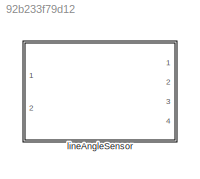
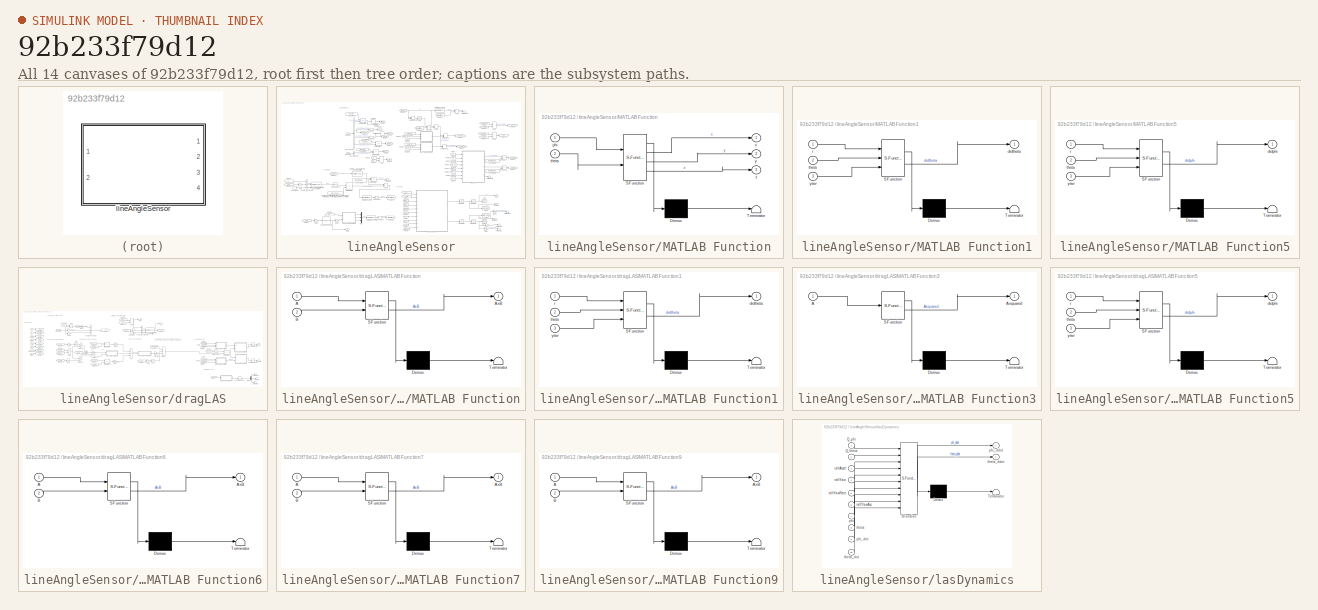
[diagram: thumbnail index - all 14 canvases of the model, root first then tree order]
MODEL slx_92b233f79d12
KIND library
CONFIG AbsTol = auto
CONFIG EnableMultiTasking = off
CONFIG FixedStep = auto
CONFIG MaxStep = auto
CONFIG MinStep = auto
CONFIG RelTol = 1e-3
CONFIG SampleTimeConstraint = Unconstrained
CONFIG Solver = VariableStepAuto
CONFIG SolverName = VariableStepAuto
CONFIG StartTime = 0.0
CONFIG StopTime = 10.0
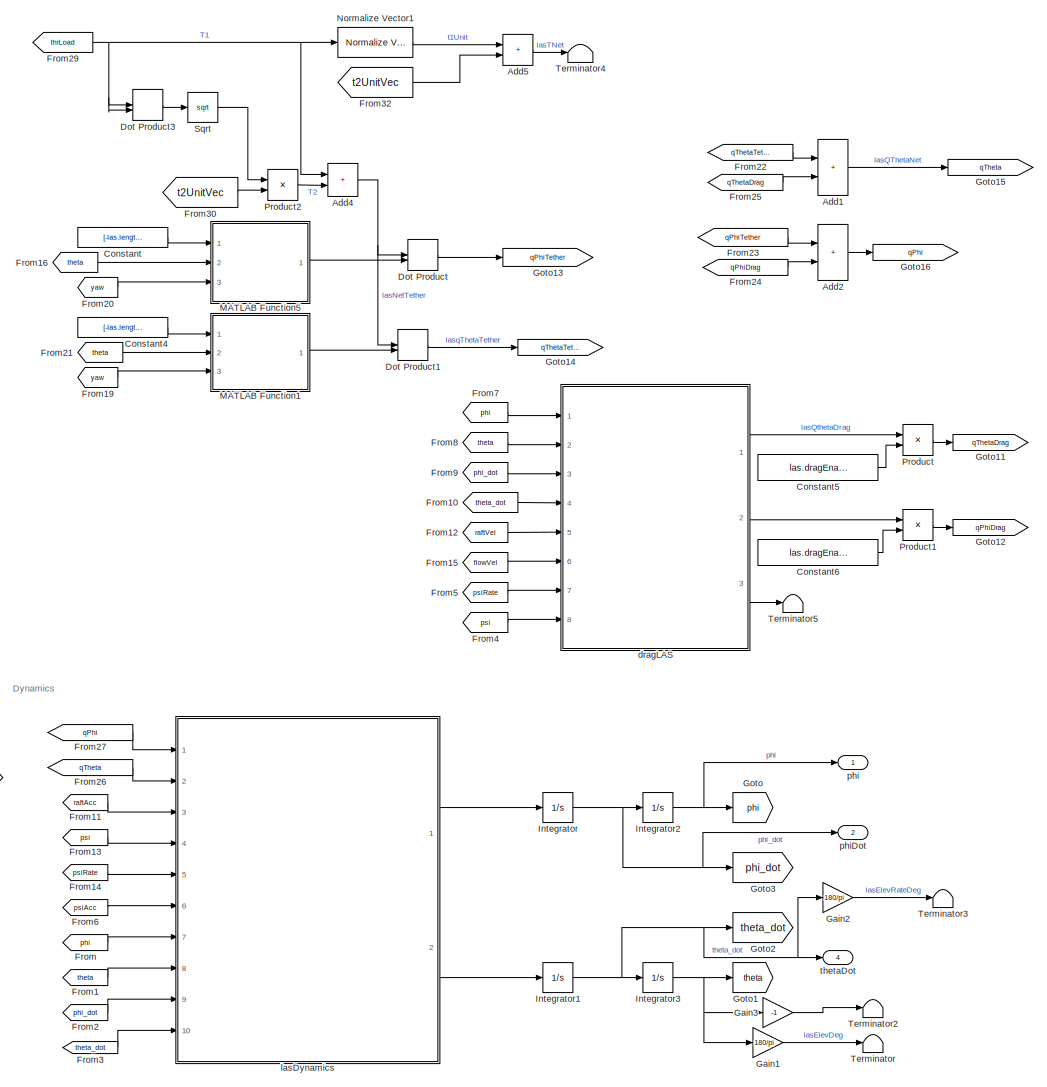
[diagram: lineAngleSensor - part 1/2, right side, full height]
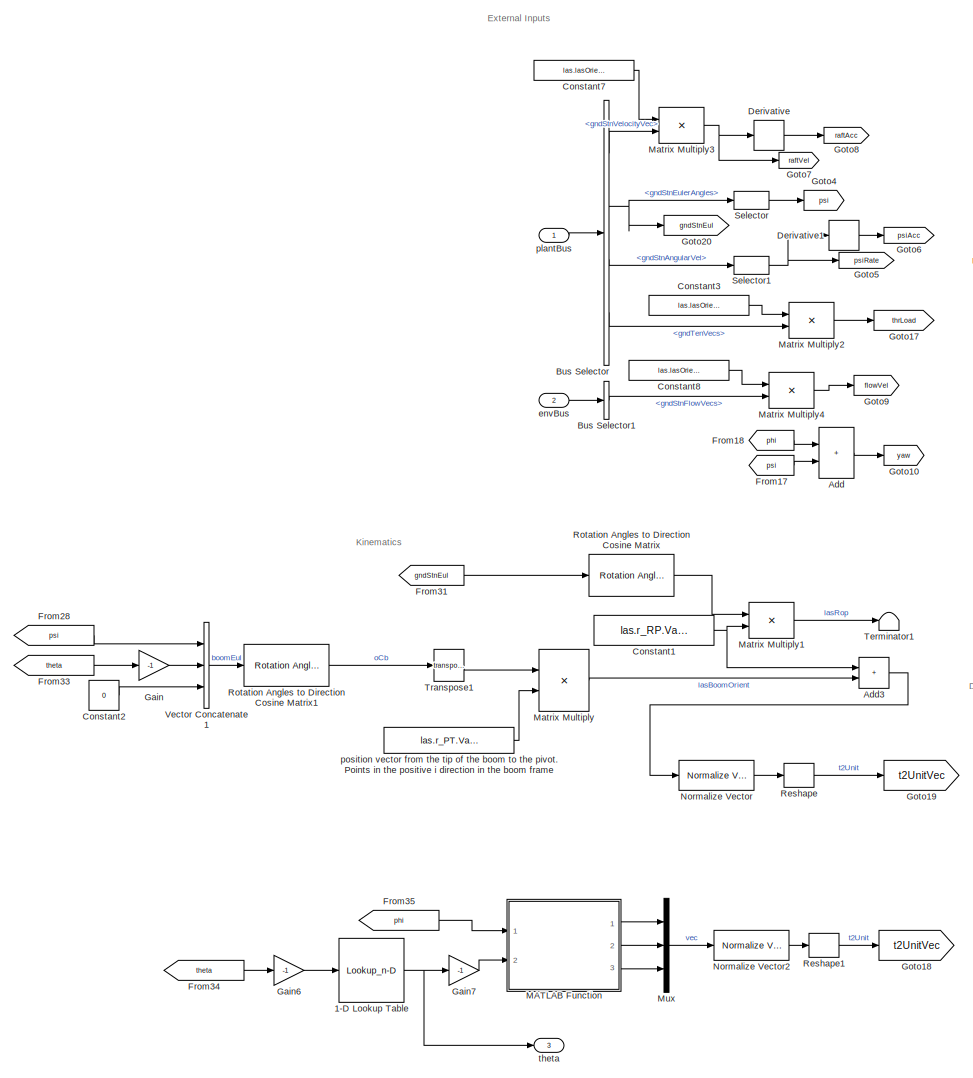
[diagram: lineAngleSensor - part 2/2, left side, full height]
BLOCK [SubSystem] lineAngleSensor
  Ports = [2, 4]
  RequestExecContextInheritance = off
BLOCK [Lookup_n-D] lineAngleSensor/1-D Lookup Table
  BreakpointsForDimension1 = las.thrAngLookup.Value(2,:)
  InternalRulePriority = Speed
  NumberOfTableDimensions = 1
  Ports = [1, 1]
  RndMeth = Simplest
  Table = las.thrAngLookup.Value(1,:)
BLOCK [Sum] lineAngleSensor/Add
  IconShape = rectangular
  Ports = [2, 1]
BLOCK [Sum] lineAngleSensor/Add1
  IconShape = rectangular
  Ports = [2, 1]
BLOCK [Sum] lineAngleSensor/Add2
  IconShape = rectangular
  Ports = [2, 1]
BLOCK [Sum] lineAngleSensor/Add3
  Commented = on
  IconShape = rectangular
  Ports = [2, 1]
BLOCK [Sum] lineAngleSensor/Add4
  IconShape = rectangular
  Ports = [2, 1]
BLOCK [Sum] lineAngleSensor/Add5
  IconShape = rectangular
  Ports = [2, 1]
BLOCK [BusSelector] lineAngleSensor/Bus Selector
  OutputSignals = gndStnVelocityVec,gndStnEulerAngles,gndStnAngularVel,gndTenVecs
  Ports = [1, 4]
BLOCK [BusSelector] lineAngleSensor/Bus Selector1
  OutputSignals = gndStnFlowVecs
  Ports = [1, 1]
BLOCK [Constant] lineAngleSensor/Constant
  Value = [-las.length.Value 0 0]
BLOCK [Constant] lineAngleSensor/Constant1
  Commented = on
  Value = las.r_RP.Value
BLOCK [Constant] lineAngleSensor/Constant2
  Commented = on
  Value = 0
BLOCK [Constant] lineAngleSensor/Constant3
  Value = las.lasOrient.Value
BLOCK [Constant] lineAngleSensor/Constant4
  Value = [-las.length.Value 0 0]
BLOCK [Constant] lineAngleSensor/Constant5
  Value = las.dragEnable.Value
BLOCK [Constant] lineAngleSensor/Constant6
  Value = las.dragEnable.Value
BLOCK [Constant] lineAngleSensor/Constant7
  Value = las.lasOrient.Value
BLOCK [Constant] lineAngleSensor/Constant8
  Value = las.lasOrient.Value
BLOCK [Derivative] lineAngleSensor/Derivative
BLOCK [Derivative] lineAngleSensor/Derivative1
BLOCK [DotProduct] lineAngleSensor/Dot Product
  OutDataTypeStr = Inherit: Inherit via internal rule
BLOCK [DotProduct] lineAngleSensor/Dot Product1
  OutDataTypeStr = Inherit: Inherit via internal rule
BLOCK [DotProduct] lineAngleSensor/Dot Product3
  OutDataTypeStr = Inherit: Inherit via internal rule
BLOCK [From] lineAngleSensor/From
  GotoTag = phi
BLOCK [From] lineAngleSensor/From1
  GotoTag = theta
BLOCK [From] lineAngleSensor/From10
  GotoTag = theta_dot
BLOCK [From] lineAngleSensor/From11
  GotoTag = raftAcc
BLOCK [From] lineAngleSensor/From12
  GotoTag = raftVel
BLOCK [From] lineAngleSensor/From13
  GotoTag = psi
BLOCK [From] lineAngleSensor/From14
  GotoTag = psiRate
BLOCK [From] lineAngleSensor/From15
  GotoTag = flowVel
BLOCK [From] lineAngleSensor/From16
  GotoTag = theta
BLOCK [From] lineAngleSensor/From17
  GotoTag = psi
BLOCK [From] lineAngleSensor/From18
  GotoTag = phi
BLOCK [From] lineAngleSensor/From19
  GotoTag = yaw
BLOCK [From] lineAngleSensor/From2
  GotoTag = phi_dot
BLOCK [From] lineAngleSensor/From20
  GotoTag = yaw
BLOCK [From] lineAngleSensor/From21
  GotoTag = theta
BLOCK [From] lineAngleSensor/From22
  GotoTag = qThetaTether
BLOCK [From] lineAngleSensor/From23
  GotoTag = qPhiTether
BLOCK [From] lineAngleSensor/From24
  GotoTag = qPhiDrag
BLOCK [From] lineAngleSensor/From25
  GotoTag = qThetaDrag
BLOCK [From] lineAngleSensor/From26
  GotoTag = qTheta
BLOCK [From] lineAngleSensor/From27
  GotoTag = qPhi
BLOCK [From] lineAngleSensor/From28
  Commented = on
  GotoTag = psi
BLOCK [From] lineAngleSensor/From29
  GotoTag = thrLoad
BLOCK [From] lineAngleSensor/From3
  GotoTag = theta_dot
BLOCK [From] lineAngleSensor/From30
  GotoTag = t2UnitVec
BLOCK [From] lineAngleSensor/From31
  Commented = on
  GotoTag = gndStnEul
BLOCK [From] lineAngleSensor/From32
  GotoTag = t2UnitVec
BLOCK [From] lineAngleSensor/From33
  Commented = on
  GotoTag = theta
BLOCK [From] lineAngleSensor/From34
  GotoTag = theta
BLOCK [From] lineAngleSensor/From35
  GotoTag = phi
BLOCK [From] lineAngleSensor/From4
  GotoTag = psi
BLOCK [From] lineAngleSensor/From5
  GotoTag = psiRate
BLOCK [From] lineAngleSensor/From6
  GotoTag = psiAcc
BLOCK [From] lineAngleSensor/From7
  GotoTag = phi
BLOCK [From] lineAngleSensor/From8
  GotoTag = theta
BLOCK [From] lineAngleSensor/From9
  GotoTag = phi_dot
BLOCK [Gain] lineAngleSensor/Gain
  Commented = on
  Gain = -1
BLOCK [Gain] lineAngleSensor/Gain1
  Gain = 180/pi
BLOCK [Gain] lineAngleSensor/Gain2
  Gain = 180/pi
BLOCK [Gain] lineAngleSensor/Gain3
  Gain = -1
BLOCK [Gain] lineAngleSensor/Gain6
  Gain = -1
  NameLocation = top
BLOCK [Gain] lineAngleSensor/Gain7
  Gain = -1
BLOCK [Goto] lineAngleSensor/Goto
  GotoTag = phi
BLOCK [Goto] lineAngleSensor/Goto1
  GotoTag = theta
BLOCK [Goto] lineAngleSensor/Goto10
  GotoTag = yaw
BLOCK [Goto] lineAngleSensor/Goto11
  GotoTag = qThetaDrag
BLOCK [Goto] lineAngleSensor/Goto12
  GotoTag = qPhiDrag
BLOCK [Goto] lineAngleSensor/Goto13
  GotoTag = qPhiTether
BLOCK [Goto] lineAngleSensor/Goto14
  GotoTag = qThetaTether
BLOCK [Goto] lineAngleSensor/Goto15
  GotoTag = qTheta
BLOCK [Goto] lineAngleSensor/Goto16
  GotoTag = qPhi
BLOCK [Goto] lineAngleSensor/Goto17
  GotoTag = thrLoad
BLOCK [Goto] lineAngleSensor/Goto18
  GotoTag = t2UnitVec
BLOCK [Goto] lineAngleSensor/Goto19
  Commented = on
  GotoTag = t2UnitVec
BLOCK [Goto] lineAngleSensor/Goto2
  GotoTag = theta_dot
BLOCK [Goto] lineAngleSensor/Goto20
  Commented = on
  GotoTag = gndStnEul
BLOCK [Goto] lineAngleSensor/Goto3
  GotoTag = phi_dot
BLOCK [Goto] lineAngleSensor/Goto4
  GotoTag = psi
BLOCK [Goto] lineAngleSensor/Goto5
  GotoTag = psiRate
BLOCK [Goto] lineAngleSensor/Goto6
  GotoTag = psiAcc
BLOCK [Goto] lineAngleSensor/Goto7
  GotoTag = raftVel
BLOCK [Goto] lineAngleSensor/Goto8
  GotoTag = raftAcc
BLOCK [Goto] lineAngleSensor/Goto9
  GotoTag = flowVel
BLOCK [Integrator] lineAngleSensor/Integrator
  InitialCondition = las.initAngVel.Value(2)
  Ports = [1, 1]
BLOCK [Integrator] lineAngleSensor/Integrator1
  InitialCondition = las.initAngVel.Value(1)
  Ports = [1, 1]
BLOCK [Integrator] lineAngleSensor/Integrator2
  InitialCondition = las.initAng.Value(2)
  Ports = [1, 1]
BLOCK [Integrator] lineAngleSensor/Integrator3
  InitialCondition = las.initAng.Value(1)
  Ports = [1, 1]
BLOCK [SubSystem] lineAngleSensor/MATLAB Function
  ErrorFcn = Stateflow.Translate.translate
  PermitHierarchicalResolution = ExplicitOnly
  Ports = [2, 3]
  RequestExecContextInheritance = off
  SFBlockType = MATLAB Function
  TreatAsAtomicUnit = on
BLOCK [Demux] lineAngleSensor/MATLAB Function/ Demux 
  Outputs = 1
  Ports = [1, 1]
BLOCK [S-Function] lineAngleSensor/MATLAB Function/ SFunction 
  EnableBusSupport = off
  FunctionName = sf_sfun
  PortCounts = [2 4]
  Ports = [2, 4]
  SFcnIsStateOwnerBlock = off
  SFunctionDeploymentMode = off
  Tag = Stateflow S-Function 2
BLOCK [Terminator] lineAngleSensor/MATLAB Function/ Terminator 
BLOCK [Inport] lineAngleSensor/MATLAB Function/phi
BLOCK [Inport] lineAngleSensor/MATLAB Function/theta
  Port = 2
BLOCK [Outport] lineAngleSensor/MATLAB Function/x
BLOCK [Outport] lineAngleSensor/MATLAB Function/y
  Port = 2
BLOCK [Outport] lineAngleSensor/MATLAB Function/z
  Port = 3
BLOCK [SubSystem] lineAngleSensor/MATLAB Function1
  ErrorFcn = Stateflow.Translate.translate
  PermitHierarchicalResolution = ExplicitOnly
  Ports = [3, 1]
  RequestExecContextInheritance = off
  SFBlockType = MATLAB Function
  TreatAsAtomicUnit = on
BLOCK [Demux] lineAngleSensor/MATLAB Function1/ Demux 
  Outputs = 1
  Ports = [1, 1]
BLOCK [S-Function] lineAngleSensor/MATLAB Function1/ SFunction 
  EnableBusSupport = off
  FunctionName = sf_sfun
  PortCounts = [3 2]
  Ports = [3, 2]
  SFcnIsStateOwnerBlock = off
  SFunctionDeploymentMode = off
  Tag = Stateflow S-Function 12
BLOCK [Terminator] lineAngleSensor/MATLAB Function1/ Terminator 
BLOCK [Outport] lineAngleSensor/MATLAB Function1/drdtheta
BLOCK [Inport] lineAngleSensor/MATLAB Function1/r
BLOCK [Inport] lineAngleSensor/MATLAB Function1/theta
  Port = 2
BLOCK [Inport] lineAngleSensor/MATLAB Function1/yaw
  Port = 3
BLOCK [SubSystem] lineAngleSensor/MATLAB Function5
  ErrorFcn = Stateflow.Translate.translate
  PermitHierarchicalResolution = ExplicitOnly
  Ports = [3, 1]
  RequestExecContextInheritance = off
  SFBlockType = MATLAB Function
  TreatAsAtomicUnit = on
BLOCK [Demux] lineAngleSensor/MATLAB Function5/ Demux 
  Outputs = 1
  Ports = [1, 1]
BLOCK [S-Function] lineAngleSensor/MATLAB Function5/ SFunction 
  EnableBusSupport = off
  FunctionName = sf_sfun
  PortCounts = [3 2]
  Ports = [3, 2]
  SFcnIsStateOwnerBlock = off
  SFunctionDeploymentMode = off
  Tag = Stateflow S-Function 11
BLOCK [Terminator] lineAngleSensor/MATLAB Function5/ Terminator 
BLOCK [Outport] lineAngleSensor/MATLAB Function5/drdphi
BLOCK [Inport] lineAngleSensor/MATLAB Function5/r
BLOCK [Inport] lineAngleSensor/MATLAB Function5/theta
  Port = 2
BLOCK [Inport] lineAngleSensor/MATLAB Function5/yaw
  Port = 3
BLOCK [Product] lineAngleSensor/Matrix Multiply
  Commented = on
  Multiplication = Matrix(*)
  Ports = [2, 1]
BLOCK [Product] lineAngleSensor/Matrix Multiply1
  Commented = on
  Multiplication = Matrix(*)
  Ports = [2, 1]
BLOCK [Product] lineAngleSensor/Matrix Multiply2
  Multiplication = Matrix(*)
  Ports = [2, 1]
BLOCK [Product] lineAngleSensor/Matrix Multiply3
  Multiplication = Matrix(*)
  Ports = [2, 1]
BLOCK [Product] lineAngleSensor/Matrix Multiply4
  Multiplication = Matrix(*)
  Ports = [2, 1]
BLOCK [Mux] lineAngleSensor/Mux
  DisplayOption = bar
  Inputs = 3
  Ports = [3, 1]
BLOCK [Reference] lineAngleSensor/Normalize Vector  REF=vrlib/Utilities/Normalize Vector
  Commented = on
  Ports = [1, 1]
  SourceBlock = vrlib/Utilities/Normalize Vector
  SourceProductBaseCode = SL
  SourceType = Normalize Vector
BLOCK [Reference] lineAngleSensor/Normalize Vector1  REF=vrlib/Utilities/Normalize Vector
  Ports = [1, 1]
  SourceBlock = vrlib/Utilities/Normalize Vector
  SourceProductBaseCode = SL
  SourceType = Normalize Vector
BLOCK [Reference] lineAngleSensor/Normalize Vector2  REF=vrlib/Utilities/Normalize Vector
  Ports = [1, 1]
  SourceBlock = vrlib/Utilities/Normalize Vector
  SourceProductBaseCode = SL
  SourceType = Normalize Vector
BLOCK [Product] lineAngleSensor/Product
  Ports = [2, 1]
BLOCK [Product] lineAngleSensor/Product1
  Ports = [2, 1]
BLOCK [Product] lineAngleSensor/Product2
  Ports = [2, 1]
BLOCK [Reshape] lineAngleSensor/Reshape
  Commented = on
  OutputDimensionality = Column vector (2-D)
  Ports = [1, 1]
BLOCK [Reshape] lineAngleSensor/Reshape1
  OutputDimensionality = Column vector (2-D)
  Ports = [1, 1]
BLOCK [Reference] lineAngleSensor/Rotation Angles to Direction Cosine Matrix  REF=sharedtransform/Rotation Angles to
Direction Cosine Matrix
  AttributesFormatString = Rotation Order: %<rotationOrder>
  Commented = on
  Ports = [1, 1]
  SourceBlock = sharedtransform/Rotation Angles to\nDirection Cosine Matrix
  SourceProductBaseCode = AE,PW,MT,VE,VP
  SourceType = Ang2DCM
BLOCK [Reference] lineAngleSensor/Rotation Angles to Direction Cosine Matrix1  REF=sharedtransform/Rotation Angles to
Direction Cosine Matrix
  AttributesFormatString = Rotation Order: %<rotationOrder>
  Commented = on
  Ports = [1, 1]
  SourceBlock = sharedtransform/Rotation Angles to\nDirection Cosine Matrix
  SourceProductBaseCode = AE,PW,MT,VE,VP
  SourceType = Ang2DCM
BLOCK [Selector] lineAngleSensor/Selector
  IndexOptions = Index vector (dialog)
  Indices = [3]
  InputPortWidth = 3
  OutputSizes = 1
  Ports = [1, 1]
BLOCK [Selector] lineAngleSensor/Selector1
  IndexOptions = Index vector (dialog)
  Indices = [3]
  InputPortWidth = 3
  OutputSizes = 1
  Ports = [1, 1]
BLOCK [Sqrt] lineAngleSensor/Sqrt
BLOCK [Terminator] lineAngleSensor/Terminator
BLOCK [Terminator] lineAngleSensor/Terminator1
  Commented = on
BLOCK [Terminator] lineAngleSensor/Terminator2
BLOCK [Terminator] lineAngleSensor/Terminator3
BLOCK [Terminator] lineAngleSensor/Terminator4
BLOCK [Terminator] lineAngleSensor/Terminator5
BLOCK [Math] lineAngleSensor/Transpose1
  Commented = on
  Operator = transpose
  Ports = [1, 1]
BLOCK [Concatenate] lineAngleSensor/Vector Concatenate1
  Commented = on
  NumInputs = 3
  Ports = [3, 1]
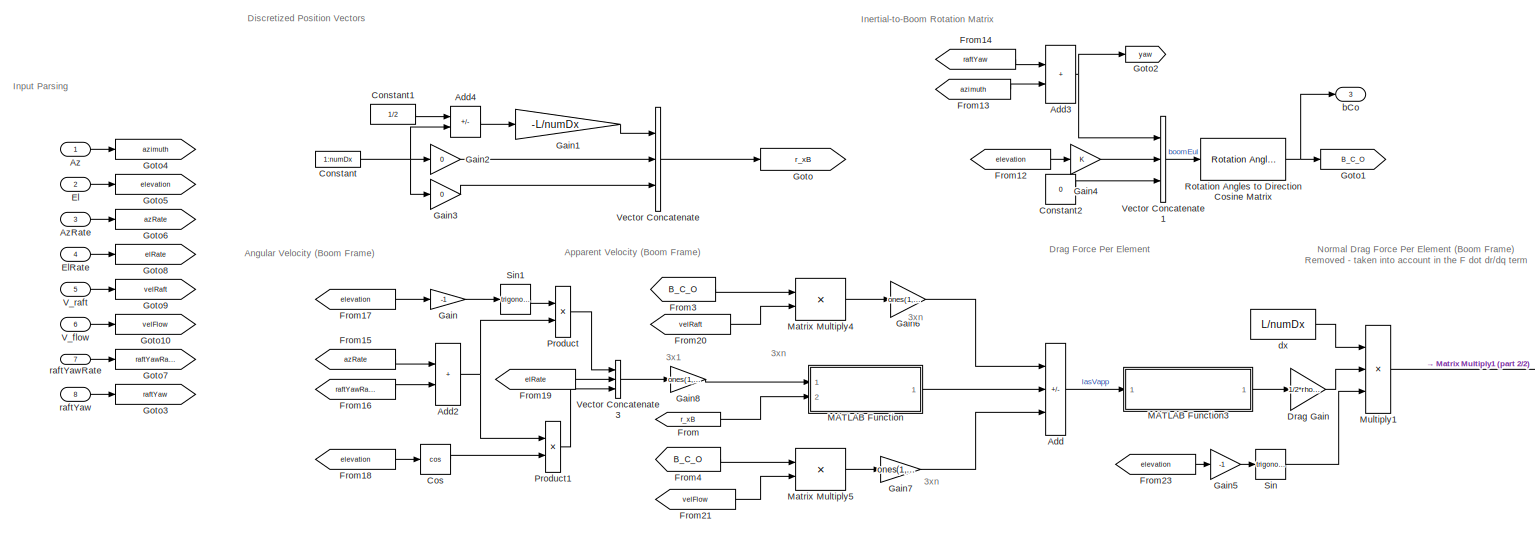
[diagram: lineAngleSensor/dragLAS - part 1/2, middle left region]
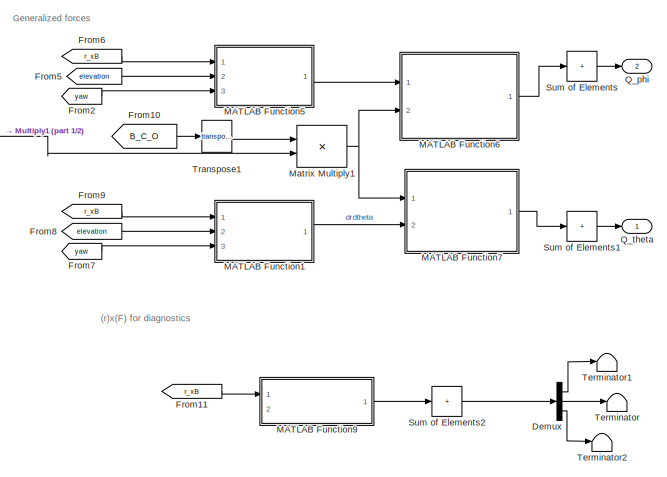
[diagram: lineAngleSensor/dragLAS - part 2/2, middle right region]
BLOCK [SubSystem] lineAngleSensor/dragLAS
  Ports = [8, 3]
  RequestExecContextInheritance = off
BLOCK [Sum] lineAngleSensor/dragLAS/Add
  IconShape = rectangular
  Inputs = --+
  Ports = [3, 1]
BLOCK [Sum] lineAngleSensor/dragLAS/Add2
  IconShape = rectangular
  Ports = [2, 1]
BLOCK [Sum] lineAngleSensor/dragLAS/Add3
  IconShape = rectangular
  Ports = [2, 1]
BLOCK [Sum] lineAngleSensor/dragLAS/Add4
  IconShape = rectangular
  Inputs = -+
  Ports = [2, 1]
BLOCK [Inport] lineAngleSensor/dragLAS/Az
BLOCK [Inport] lineAngleSensor/dragLAS/AzRate
  Port = 3
BLOCK [Constant] lineAngleSensor/dragLAS/Constant
  Value = 1:numDx
  VectorParams1D = off
BLOCK [Constant] lineAngleSensor/dragLAS/Constant1
  Value = 1/2
BLOCK [Constant] lineAngleSensor/dragLAS/Constant2
  Value = 0
BLOCK [Trigonometry] lineAngleSensor/dragLAS/Cos
  Operator = cos
  Ports = [1, 1]
BLOCK [Demux] lineAngleSensor/dragLAS/Demux
  Commented = on
  Outputs = 3
  Ports = [1, 3]
BLOCK [Gain] lineAngleSensor/dragLAS/Drag Gain
  Gain = 1/2*rho*C_D*w
BLOCK [Inport] lineAngleSensor/dragLAS/El
  Port = 2
BLOCK [Inport] lineAngleSensor/dragLAS/ElRate
  Port = 4
BLOCK [From] lineAngleSensor/dragLAS/From
  GotoTag = r_xB
BLOCK [From] lineAngleSensor/dragLAS/From10
  GotoTag = B_C_O
BLOCK [From] lineAngleSensor/dragLAS/From11
  Commented = on
  GotoTag = r_xB
BLOCK [From] lineAngleSensor/dragLAS/From12
  GotoTag = elevation
BLOCK [From] lineAngleSensor/dragLAS/From13
  GotoTag = azimuth
BLOCK [From] lineAngleSensor/dragLAS/From14
  GotoTag = raftYaw
BLOCK [From] lineAngleSensor/dragLAS/From15
  GotoTag = azRate
BLOCK [From] lineAngleSensor/dragLAS/From16
  GotoTag = raftYawRate
BLOCK [From] lineAngleSensor/dragLAS/From17
  GotoTag = elevation
BLOCK [From] lineAngleSensor/dragLAS/From18
  GotoTag = elevation
BLOCK [From] lineAngleSensor/dragLAS/From19
  GotoTag = elRate
BLOCK [From] lineAngleSensor/dragLAS/From2
  GotoTag = yaw
BLOCK [From] lineAngleSensor/dragLAS/From20
  GotoTag = velRaft
BLOCK [From] lineAngleSensor/dragLAS/From21
  GotoTag = velFlow
BLOCK [From] lineAngleSensor/dragLAS/From23
  GotoTag = elevation
BLOCK [From] lineAngleSensor/dragLAS/From3
  GotoTag = B_C_O
BLOCK [From] lineAngleSensor/dragLAS/From4
  GotoTag = B_C_O
BLOCK [From] lineAngleSensor/dragLAS/From5
  GotoTag = elevation
BLOCK [From] lineAngleSensor/dragLAS/From6
  GotoTag = r_xB
BLOCK [From] lineAngleSensor/dragLAS/From7
  GotoTag = yaw
BLOCK [From] lineAngleSensor/dragLAS/From8
  GotoTag = elevation
BLOCK [From] lineAngleSensor/dragLAS/From9
  GotoTag = r_xB
BLOCK [Gain] lineAngleSensor/dragLAS/Gain
  Gain = -1
BLOCK [Gain] lineAngleSensor/dragLAS/Gain1
  Gain = -L/numDx
BLOCK [Gain] lineAngleSensor/dragLAS/Gain2
  Gain = 0
BLOCK [Gain] lineAngleSensor/dragLAS/Gain3
  Gain = 0
BLOCK [Gain] lineAngleSensor/dragLAS/Gain4
BLOCK [Gain] lineAngleSensor/dragLAS/Gain5
  Gain = -1
BLOCK [Gain] lineAngleSensor/dragLAS/Gain6
  Gain = ones(1,numDx)
  Multiplication = Matrix(u*K)
BLOCK [Gain] lineAngleSensor/dragLAS/Gain7
  Gain = ones(1,numDx)
  Multiplication = Matrix(u*K)
BLOCK [Gain] lineAngleSensor/dragLAS/Gain8
  Gain = ones(1,numDx)
  Multiplication = Matrix(u*K)
BLOCK [Goto] lineAngleSensor/dragLAS/Goto
  GotoTag = r_xB
BLOCK [Goto] lineAngleSensor/dragLAS/Goto1
  GotoTag = B_C_O
BLOCK [Goto] lineAngleSensor/dragLAS/Goto10
  GotoTag = velFlow
BLOCK [Goto] lineAngleSensor/dragLAS/Goto2
  GotoTag = yaw
BLOCK [Goto] lineAngleSensor/dragLAS/Goto3
  GotoTag = raftYaw
BLOCK [Goto] lineAngleSensor/dragLAS/Goto4
  GotoTag = azimuth
BLOCK [Goto] lineAngleSensor/dragLAS/Goto5
  GotoTag = elevation
BLOCK [Goto] lineAngleSensor/dragLAS/Goto6
  GotoTag = azRate
BLOCK [Goto] lineAngleSensor/dragLAS/Goto7
  GotoTag = raftYawRate
BLOCK [Goto] lineAngleSensor/dragLAS/Goto8
  GotoTag = elRate
BLOCK [Goto] lineAngleSensor/dragLAS/Goto9
  GotoTag = velRaft
BLOCK [SubSystem] lineAngleSensor/dragLAS/MATLAB Function
  ErrorFcn = Stateflow.Translate.translate
  PermitHierarchicalResolution = ExplicitOnly
  Ports = [2, 1]
  RequestExecContextInheritance = off
  SFBlockType = MATLAB Function
  TreatAsAtomicUnit = on
BLOCK [Demux] lineAngleSensor/dragLAS/MATLAB Function/ Demux 
  Outputs = 1
  Ports = [1, 1]
BLOCK [S-Function] lineAngleSensor/dragLAS/MATLAB Function/ SFunction 
  EnableBusSupport = off
  FunctionName = sf_sfun
  PortCounts = [2 2]
  Ports = [2, 2]
  SFcnIsStateOwnerBlock = off
  SFunctionDeploymentMode = off
  Tag = Stateflow S-Function 7
BLOCK [Terminator] lineAngleSensor/dragLAS/MATLAB Function/ Terminator 
BLOCK [Inport] lineAngleSensor/dragLAS/MATLAB Function/A
BLOCK [Outport] lineAngleSensor/dragLAS/MATLAB Function/AxB
BLOCK [Inport] lineAngleSensor/dragLAS/MATLAB Function/B
  Port = 2
BLOCK [SubSystem] lineAngleSensor/dragLAS/MATLAB Function1
  ErrorFcn = Stateflow.Translate.translate
  PermitHierarchicalResolution = ExplicitOnly
  Ports = [3, 1]
  RequestExecContextInheritance = off
  SFBlockType = MATLAB Function
  TreatAsAtomicUnit = on
BLOCK [Demux] lineAngleSensor/dragLAS/MATLAB Function1/ Demux 
  Outputs = 1
  Ports = [1, 1]
BLOCK [S-Function] lineAngleSensor/dragLAS/MATLAB Function1/ SFunction 
  EnableBusSupport = off
  FunctionName = sf_sfun
  PortCounts = [3 2]
  Ports = [3, 2]
  SFcnIsStateOwnerBlock = off
  SFunctionDeploymentMode = off
  Tag = Stateflow S-Function 8
BLOCK [Terminator] lineAngleSensor/dragLAS/MATLAB Function1/ Terminator 
BLOCK [Outport] lineAngleSensor/dragLAS/MATLAB Function1/drdtheta
BLOCK [Inport] lineAngleSensor/dragLAS/MATLAB Function1/r
BLOCK [Inport] lineAngleSensor/dragLAS/MATLAB Function1/theta
  Port = 2
BLOCK [Inport] lineAngleSensor/dragLAS/MATLAB Function1/yaw
  Port = 3
BLOCK [SubSystem] lineAngleSensor/dragLAS/MATLAB Function3
  ErrorFcn = Stateflow.Translate.translate
  PermitHierarchicalResolution = ExplicitOnly
  Ports = [1, 1]
  RequestExecContextInheritance = off
  SFBlockType = MATLAB Function
  TreatAsAtomicUnit = on
BLOCK [Demux] lineAngleSensor/dragLAS/MATLAB Function3/ Demux 
  Outputs = 1
  Ports = [1, 1]
BLOCK [S-Function] lineAngleSensor/dragLAS/MATLAB Function3/ SFunction 
  EnableBusSupport = off
  FunctionName = sf_sfun
  PortCounts = [1 2]
  Ports = [1, 2]
  SFcnIsStateOwnerBlock = off
  SFunctionDeploymentMode = off
  Tag = Stateflow S-Function 10
BLOCK [Terminator] lineAngleSensor/dragLAS/MATLAB Function3/ Terminator 
BLOCK [Inport] lineAngleSensor/dragLAS/MATLAB Function3/A
BLOCK [Outport] lineAngleSensor/dragLAS/MATLAB Function3/Asquared
BLOCK [SubSystem] lineAngleSensor/dragLAS/MATLAB Function5
  ErrorFcn = Stateflow.Translate.translate
  PermitHierarchicalResolution = ExplicitOnly
  Ports = [3, 1]
  RequestExecContextInheritance = off
  SFBlockType = MATLAB Function
  TreatAsAtomicUnit = on
BLOCK [Demux] lineAngleSensor/dragLAS/MATLAB Function5/ Demux 
  Outputs = 1
  Ports = [1, 1]
BLOCK [S-Function] lineAngleSensor/dragLAS/MATLAB Function5/ SFunction 
  EnableBusSupport = off
  FunctionName = sf_sfun
  PortCounts = [3 2]
  Ports = [3, 2]
  SFcnIsStateOwnerBlock = off
  SFunctionDeploymentMode = off
  Tag = Stateflow S-Function 14
BLOCK [Terminator] lineAngleSensor/dragLAS/MATLAB Function5/ Terminator 
BLOCK [Outport] lineAngleSensor/dragLAS/MATLAB Function5/drdphi
BLOCK [Inport] lineAngleSensor/dragLAS/MATLAB Function5/r
BLOCK [Inport] lineAngleSensor/dragLAS/MATLAB Function5/theta
  Port = 2
BLOCK [Inport] lineAngleSensor/dragLAS/MATLAB Function5/yaw
  Port = 3
BLOCK [SubSystem] lineAngleSensor/dragLAS/MATLAB Function6
  ErrorFcn = Stateflow.Translate.translate
  PermitHierarchicalResolution = ExplicitOnly
  Ports = [2, 1]
  RequestExecContextInheritance = off
  SFBlockType = MATLAB Function
  TreatAsAtomicUnit = on
BLOCK [Demux] lineAngleSensor/dragLAS/MATLAB Function6/ Demux 
  Outputs = 1
  Ports = [1, 1]
BLOCK [S-Function] lineAngleSensor/dragLAS/MATLAB Function6/ SFunction 
  EnableBusSupport = off
  FunctionName = sf_sfun
  PortCounts = [2 2]
  Ports = [2, 2]
  SFcnIsStateOwnerBlock = off
  SFunctionDeploymentMode = off
  Tag = Stateflow S-Function 15
BLOCK [Terminator] lineAngleSensor/dragLAS/MATLAB Function6/ Terminator 
BLOCK [Inport] lineAngleSensor/dragLAS/MATLAB Function6/A
BLOCK [Outport] lineAngleSensor/dragLAS/MATLAB Function6/AxB
BLOCK [Inport] lineAngleSensor/dragLAS/MATLAB Function6/B
  Port = 2
BLOCK [SubSystem] lineAngleSensor/dragLAS/MATLAB Function7
  ErrorFcn = Stateflow.Translate.translate
  PermitHierarchicalResolution = ExplicitOnly
  Ports = [2, 1]
  RequestExecContextInheritance = off
  SFBlockType = MATLAB Function
  TreatAsAtomicUnit = on
BLOCK [Demux] lineAngleSensor/dragLAS/MATLAB Function7/ Demux 
  Outputs = 1
  Ports = [1, 1]
BLOCK [S-Function] lineAngleSensor/dragLAS/MATLAB Function7/ SFunction 
  EnableBusSupport = off
  FunctionName = sf_sfun
  PortCounts = [2 2]
  Ports = [2, 2]
  SFcnIsStateOwnerBlock = off
  SFunctionDeploymentMode = off
  Tag = Stateflow S-Function 16
BLOCK [Terminator] lineAngleSensor/dragLAS/MATLAB Function7/ Terminator 
BLOCK [Inport] lineAngleSensor/dragLAS/MATLAB Function7/A
BLOCK [Outport] lineAngleSensor/dragLAS/MATLAB Function7/AxB
BLOCK [Inport] lineAngleSensor/dragLAS/MATLAB Function7/B
  Port = 2
BLOCK [SubSystem] lineAngleSensor/dragLAS/MATLAB Function9
  Commented = on
  ErrorFcn = Stateflow.Translate.translate
  PermitHierarchicalResolution = ExplicitOnly
  Ports = [2, 1]
  RequestExecContextInheritance = off
  SFBlockType = MATLAB Function
  TreatAsAtomicUnit = on
BLOCK [Demux] lineAngleSensor/dragLAS/MATLAB Function9/ Demux 
  Outputs = 1
  Ports = [1, 1]
BLOCK [S-Function] lineAngleSensor/dragLAS/MATLAB Function9/ SFunction 
  EnableBusSupport = off
  FunctionName = sf_sfun
  PortCounts = [2 2]
  Ports = [2, 2]
  SFcnIsStateOwnerBlock = off
  SFunctionDeploymentMode = off
  Tag = Stateflow S-Function 18
BLOCK [Terminator] lineAngleSensor/dragLAS/MATLAB Function9/ Terminator 
BLOCK [Inport] lineAngleSensor/dragLAS/MATLAB Function9/A
BLOCK [Outport] lineAngleSensor/dragLAS/MATLAB Function9/AxB
BLOCK [Inport] lineAngleSensor/dragLAS/MATLAB Function9/B
  Port = 2
BLOCK [Product] lineAngleSensor/dragLAS/Matrix Multiply1
  Multiplication = Matrix(*)
  Ports = [2, 1]
BLOCK [Product] lineAngleSensor/dragLAS/Matrix Multiply4
  Inputs = **
  Multiplication = Matrix(*)
  Ports = [2, 1]
BLOCK [Product] lineAngleSensor/dragLAS/Matrix Multiply5
  Multiplication = Matrix(*)
  Ports = [2, 1]
BLOCK [Product] lineAngleSensor/dragLAS/Multiply1
  Inputs = ***
  Ports = [3, 1]
BLOCK [Product] lineAngleSensor/dragLAS/Product
  Ports = [2, 1]
BLOCK [Product] lineAngleSensor/dragLAS/Product1
  Ports = [2, 1]
BLOCK [Outport] lineAngleSensor/dragLAS/Q_phi
  Port = 2
BLOCK [Outport] lineAngleSensor/dragLAS/Q_theta
BLOCK [Reference] lineAngleSensor/dragLAS/Rotation Angles to Direction Cosine Matrix  REF=sharedtransform/Rotation Angles to
Direction Cosine Matrix
  AttributesFormatString = Rotation Order: %<rotationOrder>
  Ports = [1, 1]
  SourceBlock = sharedtransform/Rotation Angles to\nDirection Cosine Matrix
  SourceProductBaseCode = AE,PW,MT,VE,VP
  SourceType = Ang2DCM
BLOCK [Trigonometry] lineAngleSensor/dragLAS/Sin
  Ports = [1, 1]
BLOCK [Trigonometry] lineAngleSensor/dragLAS/Sin1
  Ports = [1, 1]
BLOCK [Sum] lineAngleSensor/dragLAS/Sum of Elements
  CollapseDim = 2
  CollapseMode = Specified dimension
  IconShape = rectangular
  Inputs = +
  Ports = [1, 1]
BLOCK [Sum] lineAngleSensor/dragLAS/Sum of Elements1
  CollapseDim = 2
  CollapseMode = Specified dimension
  IconShape = rectangular
  Inputs = +
  Ports = [1, 1]
BLOCK [Sum] lineAngleSensor/dragLAS/Sum of Elements2
  CollapseDim = 2
  CollapseMode = Specified dimension
  Commented = on
  IconShape = rectangular
  Inputs = +
  Ports = [1, 1]
BLOCK [Terminator] lineAngleSensor/dragLAS/Terminator
  Commented = on
BLOCK [Terminator] lineAngleSensor/dragLAS/Terminator1
  Commented = on
BLOCK [Terminator] lineAngleSensor/dragLAS/Terminator2
  Commented = on
BLOCK [Math] lineAngleSensor/dragLAS/Transpose1
  Operator = transpose
  Ports = [1, 1]
BLOCK [Inport] lineAngleSensor/dragLAS/V_flow
  Port = 6
BLOCK [Inport] lineAngleSensor/dragLAS/V_raft
  Port = 5
BLOCK [Concatenate] lineAngleSensor/dragLAS/Vector Concatenate
  Mode = Multidimensional array
  NumInputs = 3
  Ports = [3, 1]
BLOCK [Concatenate] lineAngleSensor/dragLAS/Vector Concatenate1
  NumInputs = 3
  Ports = [3, 1]
BLOCK [Concatenate] lineAngleSensor/dragLAS/Vector Concatenate3
  NumInputs = 3
  Ports = [3, 1]
BLOCK [Outport] lineAngleSensor/dragLAS/bCo
  Port = 3
BLOCK [Constant] lineAngleSensor/dragLAS/dx
  Value = L/numDx
BLOCK [Inport] lineAngleSensor/dragLAS/raftYaw
  Port = 8
BLOCK [Inport] lineAngleSensor/dragLAS/raftYawRate
  Port = 7
BLOCK [Inport] lineAngleSensor/envBus
  Port = 2
BLOCK [SubSystem] lineAngleSensor/lasDynamics
  ErrorFcn = Stateflow.Translate.translate
  PermitHierarchicalResolution = ExplicitOnly
  Ports = [10, 2]
  RequestExecContextInheritance = off
  SFBlockType = MATLAB Function
  TreatAsAtomicUnit = on
BLOCK [Demux] lineAngleSensor/lasDynamics/ Demux 
  Outputs = 1
  Ports = [1, 1]
BLOCK [S-Function] lineAngleSensor/lasDynamics/ SFunction 
  EnableBusSupport = off
  FunctionName = sf_sfun
  Parameters = Fb_LAS,IxxLAS,IyyLAS,IzzLAS,L_CB,L_CM,g,mass_LAS
  PortCounts = [10 3]
  Ports = [10, 3]
  SFcnIsStateOwnerBlock = off
  SFunctionDeploymentMode = off
  Tag = Stateflow S-Function 19
BLOCK [Terminator] lineAngleSensor/lasDynamics/ Terminator 
BLOCK [Inport] lineAngleSensor/lasDynamics/Q_phi
BLOCK [Inport] lineAngleSensor/lasDynamics/Q_theta
  Port = 2
BLOCK [Inport] lineAngleSensor/lasDynamics/phi
  Port = 7
BLOCK [Outport] lineAngleSensor/lasDynamics/phi_ddot
BLOCK [Inport] lineAngleSensor/lasDynamics/phi_dot
  Port = 9
BLOCK [Inport] lineAngleSensor/lasDynamics/raftAccel
  Port = 3
BLOCK [Inport] lineAngleSensor/lasDynamics/raftYaw
  Port = 4
BLOCK [Inport] lineAngleSensor/lasDynamics/raftYawAcc
  Port = 6
BLOCK [Inport] lineAngleSensor/lasDynamics/raftYawRate
  Port = 5
BLOCK [Inport] lineAngleSensor/lasDynamics/theta
  Port = 8
BLOCK [Outport] lineAngleSensor/lasDynamics/theta_ddot
  Port = 2
BLOCK [Inport] lineAngleSensor/lasDynamics/theta_dot
  Port = 10
BLOCK [Outport] lineAngleSensor/phi
BLOCK [Outport] lineAngleSensor/phiDot
  Port = 2
BLOCK [Inport] lineAngleSensor/plantBus
BLOCK [Constant] lineAngleSensor/position vector from the tip of the boom to the pivot. Points in the positive i direction in the boom frame 
  Commented = on
  Value = las.r_PT.Value
BLOCK [Outport] lineAngleSensor/theta
  Port = 3
BLOCK [Outport] lineAngleSensor/thetaDot
  Port = 4
ANNOTATION lineAngleSensor: Dynamics
ANNOTATION lineAngleSensor: External Inputs
ANNOTATION lineAngleSensor: Kinematics
ANNOTATION lineAngleSensor/dragLAS: (r)x(F) for diagnostics
ANNOTATION lineAngleSensor/dragLAS: 3x1
ANNOTATION lineAngleSensor/dragLAS: 3xn
ANNOTATION lineAngleSensor/dragLAS: Angular Velocity (Boom Frame)
ANNOTATION lineAngleSensor/dragLAS: Apparent Velocity (Boom Frame)
ANNOTATION lineAngleSensor/dragLAS: Discretized Position Vectors
ANNOTATION lineAngleSensor/dragLAS: Drag Force Per Element
ANNOTATION lineAngleSensor/dragLAS: Generalized forces
ANNOTATION lineAngleSensor/dragLAS: Inertial-to-Boom Rotation Matrix
ANNOTATION lineAngleSensor/dragLAS: Input Parsing
ANNOTATION lineAngleSensor/dragLAS: Normal Drag Force Per Element (Boom Frame) Removed - taken into account in the F dot dr/dq term
NET lineAngleSensor/1-D Lookup Table:1 -> lineAngleSensor/Gain7:1, lineAngleSensor/theta:1
LINE lineAngleSensor/Add1:1 -> lineAngleSensor/Goto15:1
LINE lineAngleSensor/Add2:1 -> lineAngleSensor/Goto16:1
LINE lineAngleSensor/Add3:1 -> lineAngleSensor/Normalize Vector:1
NET lineAngleSensor/Add4:1 -> lineAngleSensor/Dot Product1:1, lineAngleSensor/Dot Product:1
LINE lineAngleSensor/Add5:1 -> lineAngleSensor/Terminator4:1
LINE lineAngleSensor/Add:1 -> lineAngleSensor/Goto10:1
LINE lineAngleSensor/Bus Selector1:1 -> lineAngleSensor/Matrix Multiply4:2
LINE lineAngleSensor/Bus Selector:1 -> lineAngleSensor/Matrix Multiply3:2
NET lineAngleSensor/Bus Selector:2 -> lineAngleSensor/Goto20:1, lineAngleSensor/Selector:1
LINE lineAngleSensor/Bus Selector:3 -> lineAngleSensor/Selector1:1
LINE lineAngleSensor/Bus Selector:4 -> lineAngleSensor/Matrix Multiply2:2
NET lineAngleSensor/Constant1:1 -> lineAngleSensor/Add3:1, lineAngleSensor/Matrix Multiply1:2
LINE lineAngleSensor/Constant2:1 -> lineAngleSensor/Vector Concatenate1:3
LINE lineAngleSensor/Constant3:1 -> lineAngleSensor/Matrix Multiply2:1
LINE lineAngleSensor/Constant4:1 -> lineAngleSensor/MATLAB Function1:1
LINE lineAngleSensor/Constant5:1 -> lineAngleSensor/Product:2
LINE lineAngleSensor/Constant6:1 -> lineAngleSensor/Product1:2
LINE lineAngleSensor/Constant7:1 -> lineAngleSensor/Matrix Multiply3:1
LINE lineAngleSensor/Constant8:1 -> lineAngleSensor/Matrix Multiply4:1
LINE lineAngleSensor/Constant:1 -> lineAngleSensor/MATLAB Function5:1
LINE lineAngleSensor/Derivative1:1 -> lineAngleSensor/Goto6:1
LINE lineAngleSensor/Derivative:1 -> lineAngleSensor/Goto8:1
LINE lineAngleSensor/Dot Product1:1 -> lineAngleSensor/Goto14:1
LINE lineAngleSensor/Dot Product3:1 -> lineAngleSensor/Sqrt:1
LINE lineAngleSensor/Dot Product:1 -> lineAngleSensor/Goto13:1
LINE lineAngleSensor/From10:1 -> lineAngleSensor/dragLAS:4
LINE lineAngleSensor/From11:1 -> lineAngleSensor/lasDynamics:3
LINE lineAngleSensor/From12:1 -> lineAngleSensor/dragLAS:5
LINE lineAngleSensor/From13:1 -> lineAngleSensor/lasDynamics:4
LINE lineAngleSensor/From14:1 -> lineAngleSensor/lasDynamics:5
LINE lineAngleSensor/From15:1 -> lineAngleSensor/dragLAS:6
LINE lineAngleSensor/From16:1 -> lineAngleSensor/MATLAB Function5:2
LINE lineAngleSensor/From17:1 -> lineAngleSensor/Add:2
LINE lineAngleSensor/From18:1 -> lineAngleSensor/Add:1
LINE lineAngleSensor/From19:1 -> lineAngleSensor/MATLAB Function1:3
LINE lineAngleSensor/From1:1 -> lineAngleSensor/lasDynamics:8
LINE lineAngleSensor/From20:1 -> lineAngleSensor/MATLAB Function5:3
LINE lineAngleSensor/From21:1 -> lineAngleSensor/MATLAB Function1:2
LINE lineAngleSensor/From22:1 -> lineAngleSensor/Add1:1
LINE lineAngleSensor/From23:1 -> lineAngleSensor/Add2:1
LINE lineAngleSensor/From24:1 -> lineAngleSensor/Add2:2
LINE lineAngleSensor/From25:1 -> lineAngleSensor/Add1:2
LINE lineAngleSensor/From26:1 -> lineAngleSensor/lasDynamics:2
LINE lineAngleSensor/From27:1 -> lineAngleSensor/lasDynamics:1
LINE lineAngleSensor/From28:1 -> lineAngleSensor/Vector Concatenate1:1
NET lineAngleSensor/From29:1 -> lineAngleSensor/Add4:1, lineAngleSensor/Dot Product3:1, lineAngleSensor/Dot Product3:2, lineAngleSensor/Normalize Vector1:1
LINE lineAngleSensor/From2:1 -> lineAngleSensor/lasDynamics:9
LINE lineAngleSensor/From30:1 -> lineAngleSensor/Product2:2
LINE lineAngleSensor/From31:1 -> lineAngleSensor/Rotation Angles to Direction Cosine Matrix:1
LINE lineAngleSensor/From32:1 -> lineAngleSensor/Add5:2
LINE lineAngleSensor/From33:1 -> lineAngleSensor/Gain:1
LINE lineAngleSensor/From34:1 -> lineAngleSensor/Gain6:1
LINE lineAngleSensor/From35:1 -> lineAngleSensor/MATLAB Function:1
LINE lineAngleSensor/From3:1 -> lineAngleSensor/lasDynamics:10
LINE lineAngleSensor/From4:1 -> lineAngleSensor/dragLAS:8
LINE lineAngleSensor/From5:1 -> lineAngleSensor/dragLAS:7
LINE lineAngleSensor/From6:1 -> lineAngleSensor/lasDynamics:6
LINE lineAngleSensor/From7:1 -> lineAngleSensor/dragLAS:1
LINE lineAngleSensor/From8:1 -> lineAngleSensor/dragLAS:2
LINE lineAngleSensor/From9:1 -> lineAngleSensor/dragLAS:3
LINE lineAngleSensor/From:1 -> lineAngleSensor/lasDynamics:7
LINE lineAngleSensor/Gain1:1 -> lineAngleSensor/Terminator:1
LINE lineAngleSensor/Gain2:1 -> lineAngleSensor/Terminator3:1
LINE lineAngleSensor/Gain3:1 -> lineAngleSensor/Terminator2:1
LINE lineAngleSensor/Gain6:1 -> lineAngleSensor/1-D Lookup Table:1
LINE lineAngleSensor/Gain7:1 -> lineAngleSensor/MATLAB Function:2
LINE lineAngleSensor/Gain:1 -> lineAngleSensor/Vector Concatenate1:2
NET lineAngleSensor/Integrator1:1 -> lineAngleSensor/Gain2:1, lineAngleSensor/Goto2:1, lineAngleSensor/Integrator3:1, lineAngleSensor/thetaDot:1
NET lineAngleSensor/Integrator2:1 -> lineAngleSensor/Goto:1, lineAngleSensor/phi:1
NET lineAngleSensor/Integrator3:1 -> lineAngleSensor/Gain1:1, lineAngleSensor/Gain3:1, lineAngleSensor/Goto1:1
NET lineAngleSensor/Integrator:1 -> lineAngleSensor/Goto3:1, lineAngleSensor/Integrator2:1, lineAngleSensor/phiDot:1
LINE lineAngleSensor/MATLAB Function1:1 -> lineAngleSensor/Dot Product1:2
LINE lineAngleSensor/MATLAB Function5:1 -> lineAngleSensor/Dot Product:2
LINE lineAngleSensor/MATLAB Function:1 -> lineAngleSensor/Mux:1
LINE lineAngleSensor/MATLAB Function:2 -> lineAngleSensor/Mux:2
LINE lineAngleSensor/MATLAB Function:3 -> lineAngleSensor/Mux:3
LINE lineAngleSensor/Matrix Multiply1:1 -> lineAngleSensor/Terminator1:1
LINE lineAngleSensor/Matrix Multiply2:1 -> lineAngleSensor/Goto17:1
NET lineAngleSensor/Matrix Multiply3:1 -> lineAngleSensor/Derivative:1, lineAngleSensor/Goto7:1
LINE lineAngleSensor/Matrix Multiply4:1 -> lineAngleSensor/Goto9:1
LINE lineAngleSensor/Matrix Multiply:1 -> lineAngleSensor/Add3:2
LINE lineAngleSensor/Mux:1 -> lineAngleSensor/Normalize Vector2:1
LINE lineAngleSensor/Normalize Vector1:1 -> lineAngleSensor/Add5:1
LINE lineAngleSensor/Normalize Vector2:1 -> lineAngleSensor/Reshape1:1
LINE lineAngleSensor/Normalize Vector:1 -> lineAngleSensor/Reshape:1
LINE lineAngleSensor/Product1:1 -> lineAngleSensor/Goto12:1
LINE lineAngleSensor/Product2:1 -> lineAngleSensor/Add4:2
LINE lineAngleSensor/Product:1 -> lineAngleSensor/Goto11:1
LINE lineAngleSensor/Reshape1:1 -> lineAngleSensor/Goto18:1
LINE lineAngleSensor/Reshape:1 -> lineAngleSensor/Goto19:1
LINE lineAngleSensor/Rotation Angles to Direction Cosine Matrix1:1 -> lineAngleSensor/Transpose1:1
LINE lineAngleSensor/Rotation Angles to Direction Cosine Matrix:1 -> lineAngleSensor/Matrix Multiply1:1
NET lineAngleSensor/Selector1:1 -> lineAngleSensor/Derivative1:1, lineAngleSensor/Goto5:1
LINE lineAngleSensor/Selector:1 -> lineAngleSensor/Goto4:1
LINE lineAngleSensor/Sqrt:1 -> lineAngleSensor/Product2:1
LINE lineAngleSensor/Transpose1:1 -> lineAngleSensor/Matrix Multiply:1
LINE lineAngleSensor/Vector Concatenate1:1 -> lineAngleSensor/Rotation Angles to Direction Cosine Matrix1:1
NET lineAngleSensor/dragLAS/Add2:1 -> lineAngleSensor/dragLAS/Product1:1, lineAngleSensor/dragLAS/Product:2
NET lineAngleSensor/dragLAS/Add3:1 -> lineAngleSensor/dragLAS/Goto2:1, lineAngleSensor/dragLAS/Vector Concatenate1:1
LINE lineAngleSensor/dragLAS/Add4:1 -> lineAngleSensor/dragLAS/Gain1:1
LINE lineAngleSensor/dragLAS/Add:1 -> lineAngleSensor/dragLAS/MATLAB Function3:1
LINE lineAngleSensor/dragLAS/Az:1 -> lineAngleSensor/dragLAS/Goto4:1
LINE lineAngleSensor/dragLAS/AzRate:1 -> lineAngleSensor/dragLAS/Goto6:1
LINE lineAngleSensor/dragLAS/Constant1:1 -> lineAngleSensor/dragLAS/Add4:1
LINE lineAngleSensor/dragLAS/Constant2:1 -> lineAngleSensor/dragLAS/Vector Concatenate1:3
NET lineAngleSensor/dragLAS/Constant:1 -> lineAngleSensor/dragLAS/Add4:2, lineAngleSensor/dragLAS/Gain2:1, lineAngleSensor/dragLAS/Gain3:1
LINE lineAngleSensor/dragLAS/Cos:1 -> lineAngleSensor/dragLAS/Product1:2
LINE lineAngleSensor/dragLAS/Demux:1 -> lineAngleSensor/dragLAS/Terminator1:1
LINE lineAngleSensor/dragLAS/Demux:2 -> lineAngleSensor/dragLAS/Terminator:1
LINE lineAngleSensor/dragLAS/Demux:3 -> lineAngleSensor/dragLAS/Terminator2:1
LINE lineAngleSensor/dragLAS/Drag Gain:1 -> lineAngleSensor/dragLAS/Multiply1:2
LINE lineAngleSensor/dragLAS/El:1 -> lineAngleSensor/dragLAS/Goto5:1
LINE lineAngleSensor/dragLAS/ElRate:1 -> lineAngleSensor/dragLAS/Goto8:1
LINE lineAngleSensor/dragLAS/From10:1 -> lineAngleSensor/dragLAS/Transpose1:1
LINE lineAngleSensor/dragLAS/From11:1 -> lineAngleSensor/dragLAS/MATLAB Function9:1
LINE lineAngleSensor/dragLAS/From12:1 -> lineAngleSensor/dragLAS/Gain4:1
LINE lineAngleSensor/dragLAS/From13:1 -> lineAngleSensor/dragLAS/Add3:2
LINE lineAngleSensor/dragLAS/From14:1 -> lineAngleSensor/dragLAS/Add3:1
LINE lineAngleSensor/dragLAS/From15:1 -> lineAngleSensor/dragLAS/Add2:1
LINE lineAngleSensor/dragLAS/From16:1 -> lineAngleSensor/dragLAS/Add2:2
LINE lineAngleSensor/dragLAS/From17:1 -> lineAngleSensor/dragLAS/Gain:1
LINE lineAngleSensor/dragLAS/From18:1 -> lineAngleSensor/dragLAS/Cos:1
LINE lineAngleSensor/dragLAS/From19:1 -> lineAngleSensor/dragLAS/Vector Concatenate3:2
LINE lineAngleSensor/dragLAS/From20:1 -> lineAngleSensor/dragLAS/Matrix Multiply4:2
LINE lineAngleSensor/dragLAS/From21:1 -> lineAngleSensor/dragLAS/Matrix Multiply5:2
LINE lineAngleSensor/dragLAS/From23:1 -> lineAngleSensor/dragLAS/Gain5:1
LINE lineAngleSensor/dragLAS/From2:1 -> lineAngleSensor/dragLAS/MATLAB Function5:3
LINE lineAngleSensor/dragLAS/From3:1 -> lineAngleSensor/dragLAS/Matrix Multiply4:1
LINE lineAngleSensor/dragLAS/From4:1 -> lineAngleSensor/dragLAS/Matrix Multiply5:1
LINE lineAngleSensor/dragLAS/From5:1 -> lineAngleSensor/dragLAS/MATLAB Function5:2
LINE lineAngleSensor/dragLAS/From6:1 -> lineAngleSensor/dragLAS/MATLAB Function5:1
LINE lineAngleSensor/dragLAS/From7:1 -> lineAngleSensor/dragLAS/MATLAB Function1:3
LINE lineAngleSensor/dragLAS/From8:1 -> lineAngleSensor/dragLAS/MATLAB Function1:2
LINE lineAngleSensor/dragLAS/From9:1 -> lineAngleSensor/dragLAS/MATLAB Function1:1
LINE lineAngleSensor/dragLAS/From:1 -> lineAngleSensor/dragLAS/MATLAB Function:2
LINE lineAngleSensor/dragLAS/Gain1:1 -> lineAngleSensor/dragLAS/Vector Concatenate:1
LINE lineAngleSensor/dragLAS/Gain2:1 -> lineAngleSensor/dragLAS/Vector Concatenate:2
LINE lineAngleSensor/dragLAS/Gain3:1 -> lineAngleSensor/dragLAS/Vector Concatenate:3
LINE lineAngleSensor/dragLAS/Gain4:1 -> lineAngleSensor/dragLAS/Vector Concatenate1:2
LINE lineAngleSensor/dragLAS/Gain5:1 -> lineAngleSensor/dragLAS/Sin:1
LINE lineAngleSensor/dragLAS/Gain6:1 -> lineAngleSensor/dragLAS/Add:1
LINE lineAngleSensor/dragLAS/Gain7:1 -> lineAngleSensor/dragLAS/Add:3
LINE lineAngleSensor/dragLAS/Gain8:1 -> lineAngleSensor/dragLAS/MATLAB Function:1
LINE lineAngleSensor/dragLAS/Gain:1 -> lineAngleSensor/dragLAS/Sin1:1
LINE lineAngleSensor/dragLAS/MATLAB Function1:1 -> lineAngleSensor/dragLAS/MATLAB Function7:2
LINE lineAngleSensor/dragLAS/MATLAB Function3:1 -> lineAngleSensor/dragLAS/Drag Gain:1
LINE lineAngleSensor/dragLAS/MATLAB Function5:1 -> lineAngleSensor/dragLAS/MATLAB Function6:1
LINE lineAngleSensor/dragLAS/MATLAB Function6:1 -> lineAngleSensor/dragLAS/Sum of Elements:1
LINE lineAngleSensor/dragLAS/MATLAB Function7:1 -> lineAngleSensor/dragLAS/Sum of Elements1:1
LINE lineAngleSensor/dragLAS/MATLAB Function9:1 -> lineAngleSensor/dragLAS/Sum of Elements2:1
LINE lineAngleSensor/dragLAS/MATLAB Function:1 -> lineAngleSensor/dragLAS/Add:2
NET lineAngleSensor/dragLAS/Matrix Multiply1:1 -> lineAngleSensor/dragLAS/MATLAB Function6:2, lineAngleSensor/dragLAS/MATLAB Function7:1
LINE lineAngleSensor/dragLAS/Matrix Multiply4:1 -> lineAngleSensor/dragLAS/Gain6:1
LINE lineAngleSensor/dragLAS/Matrix Multiply5:1 -> lineAngleSensor/dragLAS/Gain7:1
LINE lineAngleSensor/dragLAS/Multiply1:1 -> lineAngleSensor/dragLAS/Matrix Multiply1:2
LINE lineAngleSensor/dragLAS/Product1:1 -> lineAngleSensor/dragLAS/Vector Concatenate3:3
LINE lineAngleSensor/dragLAS/Product:1 -> lineAngleSensor/dragLAS/Vector Concatenate3:1
NET lineAngleSensor/dragLAS/Rotation Angles to Direction Cosine Matrix:1 -> lineAngleSensor/dragLAS/Goto1:1, lineAngleSensor/dragLAS/bCo:1
LINE lineAngleSensor/dragLAS/Sin1:1 -> lineAngleSensor/dragLAS/Product:1
LINE lineAngleSensor/dragLAS/Sin:1 -> lineAngleSensor/dragLAS/Multiply1:3
LINE lineAngleSensor/dragLAS/Sum of Elements1:1 -> lineAngleSensor/dragLAS/Q_theta:1
LINE lineAngleSensor/dragLAS/Sum of Elements2:1 -> lineAngleSensor/dragLAS/Demux:1
LINE lineAngleSensor/dragLAS/Sum of Elements:1 -> lineAngleSensor/dragLAS/Q_phi:1
LINE lineAngleSensor/dragLAS/Transpose1:1 -> lineAngleSensor/dragLAS/Matrix Multiply1:1
LINE lineAngleSensor/dragLAS/V_flow:1 -> lineAngleSensor/dragLAS/Goto10:1
LINE lineAngleSensor/dragLAS/V_raft:1 -> lineAngleSensor/dragLAS/Goto9:1
LINE lineAngleSensor/dragLAS/Vector Concatenate1:1 -> lineAngleSensor/dragLAS/Rotation Angles to Direction Cosine Matrix:1
LINE lineAngleSensor/dragLAS/Vector Concatenate3:1 -> lineAngleSensor/dragLAS/Gain8:1
LINE lineAngleSensor/dragLAS/Vector Concatenate:1 -> lineAngleSensor/dragLAS/Goto:1
LINE lineAngleSensor/dragLAS/dx:1 -> lineAngleSensor/dragLAS/Multiply1:1
LINE lineAngleSensor/dragLAS/raftYaw:1 -> lineAngleSensor/dragLAS/Goto3:1
LINE lineAngleSensor/dragLAS/raftYawRate:1 -> lineAngleSensor/dragLAS/Goto7:1
LINE lineAngleSensor/dragLAS:1 -> lineAngleSensor/Product:1
LINE lineAngleSensor/dragLAS:2 -> lineAngleSensor/Product1:1
LINE lineAngleSensor/dragLAS:3 -> lineAngleSensor/Terminator5:1
LINE lineAngleSensor/envBus:1 -> lineAngleSensor/Bus Selector1:1
LINE lineAngleSensor/lasDynamics:1 -> lineAngleSensor/Integrator:1
LINE lineAngleSensor/lasDynamics:2 -> lineAngleSensor/Integrator1:1
LINE lineAngleSensor/plantBus:1 -> lineAngleSensor/Bus Selector:1
LINE lineAngleSensor/position vector from the tip of the boom to the pivot. Points in the positive i direction in the boom frame :1 -> lineAngleSensor/Matrix Multiply:2
note: NET lines group one-source signal fan-out (src -> all destinations, sorted); 1:1 wires keep LINE
CHART lineAngleSensor/dragLAS/MATLAB Function6 states=1 transitions=1
  STATE_LABEL 'eML_blk_kernel()'
  STATE_LABEL 'SCRIPT:\nfunction AxB = dotColumnwise(A,B)\n% A, B, AcrossB: 3-by-n matrices\n\nAxB = zeros(1,size(A,2));\n\nfor i = 1:size(A,2)\n    AxB(i) = dot(A(:,i),B(:,i));\nend'
CHART lineAngleSensor/dragLAS/MATLAB Function7 states=1 transitions=1
  STATE_LABEL 'eML_blk_kernel()'
  STATE_LABEL 'SCRIPT:\nfunction AxB = dotColumnwise(A,B)\n% A, B, AcrossB: 3-by-n matrices\n\nAxB = zeros(1,size(A,2));\n\nfor i = 1:size(A,2)\n    AxB(i) = dot(A(:,i),B(:,i));\nend'
CHART lineAngleSensor/dragLAS/MATLAB Function9 states=1 transitions=1
  STATE_LABEL 'eML_blk_kernel()'
  STATE_LABEL 'SCRIPT:\nfunction AxB = crossColumnwise(A,B)\n% A, B, AcrossB: 3-by-n matrices\n\nAxB = zeros(3,size(A,2));\n\nfor i = 1:size(A,2)\n    AxB(:,i) = cross(A(:,i),B(:,i));\nend'
CHART lineAngleSensor/lasDynamics states=1 transitions=1
  STATE_LABEL 'eML_blk_kernel()'
  STATE_LABEL 'SCRIPT:\nfunction [phi_ddot, theta_ddot] = lasDynamics(Q_phi,Q_theta,raftAccel,...\n    raftYaw,raftYawRate,raftYawAcc,phi,theta,phi_dot,theta_dot,...\n    mass_LAS, Fb_LAS, IxxLAS, IyyLAS, IzzLAS, L_CB, L_CM, g)\n\n% Define the following variables in the workspace\n\n% Fb_LAS\n% mass_LAS\n% IxxLAS, IyyLAS, IzzLAS\n% L_CB, L_CG\n\n% INPUTS\n% Q_phi, Q_theta: gen. forces (1x1)\n% raftAccel: linear raft accelerat...<+1089ch>'
CHART lineAngleSensor/MATLAB Function states=1 transitions=1
  STATE_LABEL 'eML_blk_kernel()'
  STATE_LABEL 'SCRIPT:\nfunction [x,y,z] = angToPos(phi,theta)\n\nx = sqrt(1 / (1+ tan(phi)^2 +tan(theta)^2*(1 + tan(phi)^2)));\ny = tan(phi)*x;\nz = tan(theta)*sqrt((x^2+y^2));\n'
CHART lineAngleSensor/dragLAS/MATLAB Function states=1 transitions=1
  STATE_LABEL 'eML_blk_kernel()'
  STATE_LABEL 'SCRIPT:\nfunction AxB = crossColumnwise(A,B)\n% A, B, AcrossB: 3-by-n matrices\n\nAxB = zeros(3,size(A,2));\n\nfor i = 1:size(A,2)\n    AxB(:,i) = cross(A(:,i),B(:,i));\nend'
CHART lineAngleSensor/dragLAS/MATLAB Function1 states=1 transitions=1
  STATE_LABEL 'eML_blk_kernel()'
  STATE_LABEL "SCRIPT:\nfunction drdtheta = partialTheta(r,theta,yaw)\n\n% r - array of position vectors\n% theta - it's just theta\n% yaw - sum of azimuth and raft yaw\n\ndrdtheta = r*0; % preallocate\n\nfor i = 1:size(r,2)\n    x = r(1,i);\n    % This closed-form solution was calculated separately\n    drdtheta(:,i) = x*[-sin(theta)*cos(yaw);...\n                       -sin(theta)*sin(yaw);...\n                       -cos(t...<+12ch>"
CHART lineAngleSensor/dragLAS/MATLAB Function3 states=1 transitions=1
  STATE_LABEL 'eML_blk_kernel()'
  STATE_LABEL 'SCRIPT:\nfunction Asquared = multByMagColumnwise(A)\n% A, Asquared: 3-by-n matrices\n% Equivalent to A-dot-A times unit vector along A\n\nAsquared = zeros(3,size(A,2));\n\nfor i = 1:size(A,2)\n    Asquared(:,i) = A(:,i)*sqrt(sum(A(:,i).^2));\nend'
CHART lineAngleSensor/MATLAB Function5 states=1 transitions=1
  STATE_LABEL 'eML_blk_kernel()'
  STATE_LABEL "SCRIPT:\nfunction drdphi = partialPhi(r,theta,yaw)\n\n% r - array of position vectors\n% theta - it's just theta\n% yaw - sum of azimuth and raft yaw\n\ndrdphi = r*0; % preallocate\n\nfor i = 1:size(r,2)\n    x = r(1,i);\n    % This closed-form solution was calculated separately\n    drdphi(:,i) = x*[-cos(theta)*sin(yaw);cos(theta)*cos(yaw);0];\nend\n"
CHART lineAngleSensor/MATLAB Function1 states=1 transitions=1
  STATE_LABEL 'eML_blk_kernel()'
  STATE_LABEL "SCRIPT:\nfunction drdtheta = partialTheta(r,theta,yaw)\n\n% r - array of position vectors\n% theta - it's just theta\n% yaw - sum of azimuth and raft yaw\n\ndrdtheta = r*0; % preallocate\n\nfor i = 1:size(r,2)\n    x = r(1,i);\n    % This closed-form solution was calculated separately\n    drdtheta(:,i) = x*[-sin(theta)*cos(yaw);-sin(theta)*sin(yaw);cos(theta)];\nend\n"
CHART lineAngleSensor/dragLAS/MATLAB Function5 states=1 transitions=1
  STATE_LABEL 'eML_blk_kernel()'
  STATE_LABEL "SCRIPT:\nfunction drdphi = partialPhi(r,theta,yaw)\n\n% r - array of position vectors\n% theta - it's just theta\n% yaw - sum of azimuth and raft yaw\n\ndrdphi = r*0; % preallocate\n\nfor i = 1:size(r,2)\n    x = r(1,i);\n    % This closed-form solution was calculated separately\n    drdphi(:,i) = x*[-cos(theta)*sin(yaw);...\n                      cos(theta)*cos(yaw);...\n                      0];\nend\n"
CHART  states=0 transitions=0
CHART  states=0 transitions=0
CHART  states=0 transitions=0
CHART  states=0 transitions=0
CHART  states=0 transitions=0
CHART  states=0 transitions=0
CHART  states=0 transitions=0
CHART  states=0 transitions=0
CHART  states=0 transitions=0
CHART  states=0 transitions=0
CHART  states=0 transitions=0
